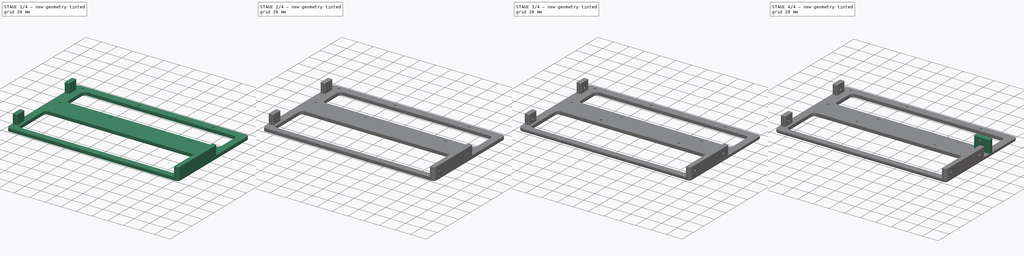
[diagram: build sequence overview — one tinted view per stage of 4, left to right]
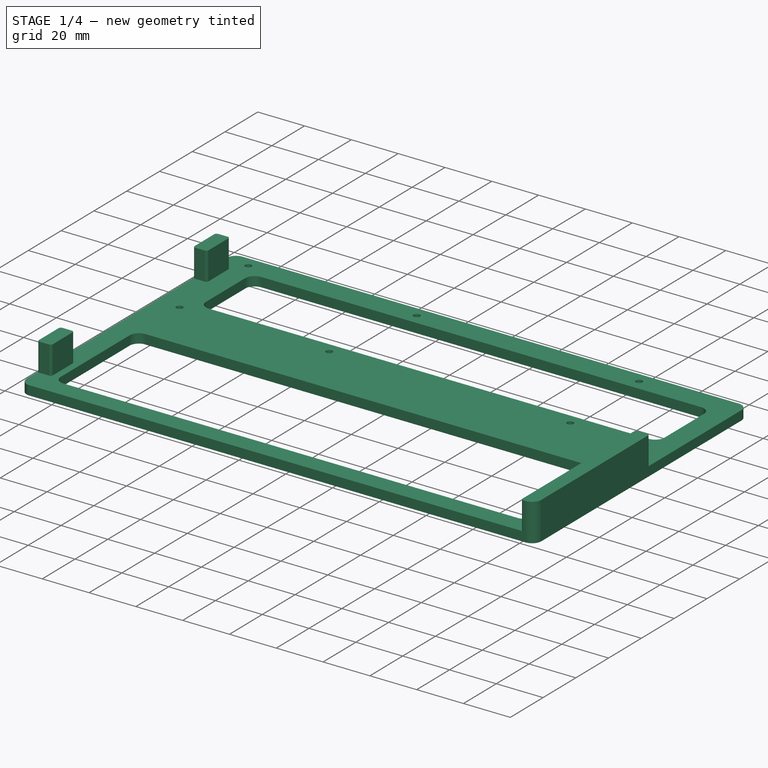
[diagram: stage 1 of 4 — iso view after this stage's code; geometry added in this stage tinted green]
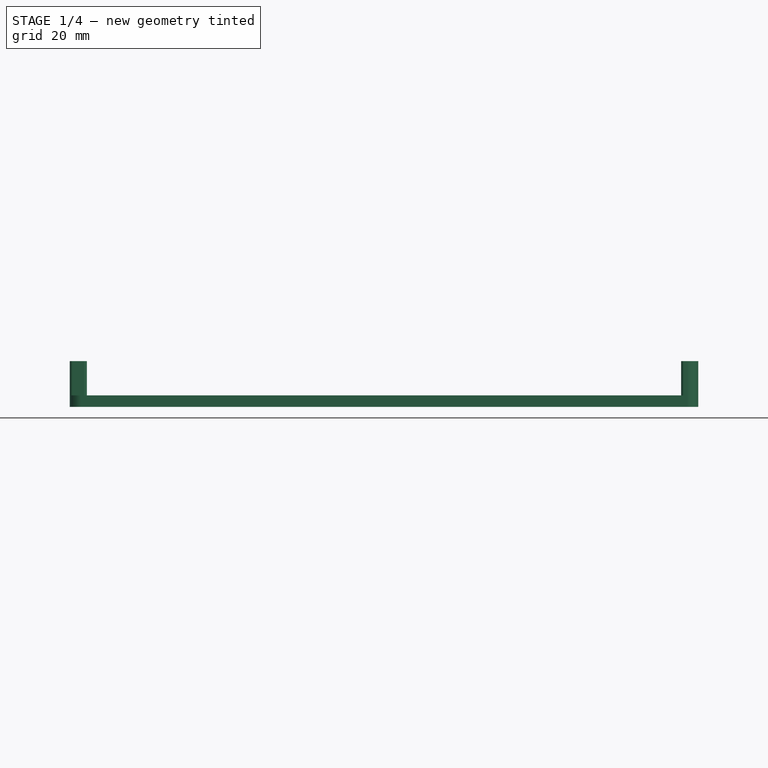
[diagram: stage 1 of 4 — front view after this stage's code; geometry added in this stage tinted green]
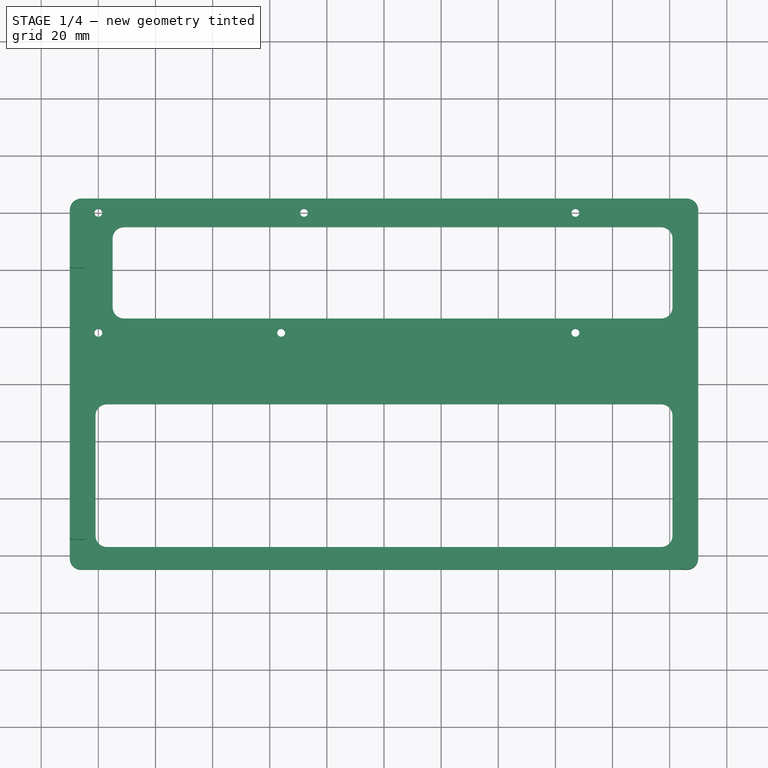
[diagram: stage 1 of 4 — top view after this stage's code; geometry added in this stage tinted green]
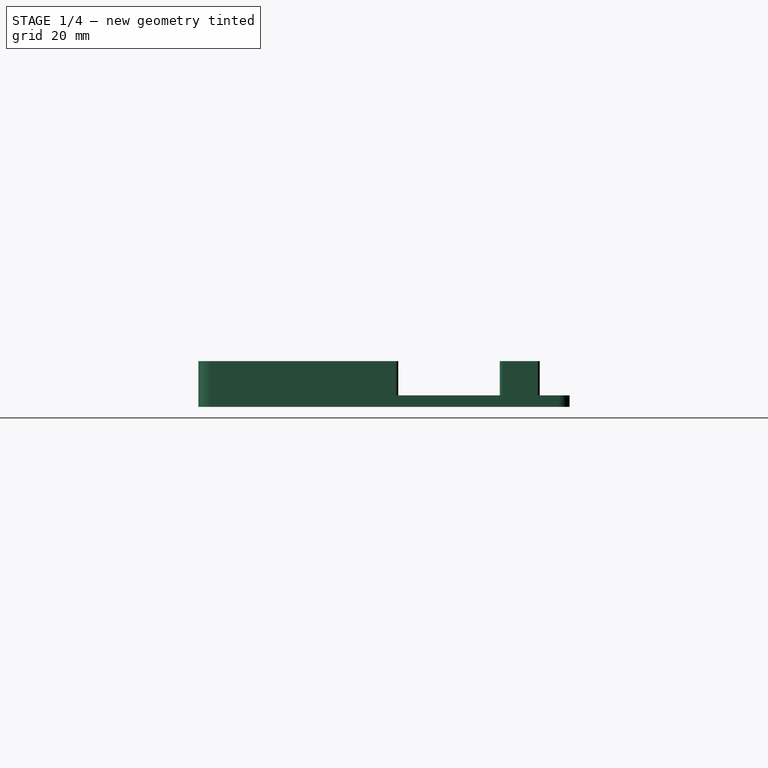
[diagram: stage 1 of 4 — right view after this stage's code; geometry added in this stage tinted green]
FCSTD DOCUMENT  (FreeCAD 0.21R33668 +7 (Git))
Label: baseplate
License: All rights reserved
LicenseURL: http://en.wikipedia.org/wiki/All_rights_reserved
objects: Sketcher::SketchObject×8, PartDesign::Pocket×5, PartDesign::Pad×3, Spreadsheet::Sheet×1, PartDesign::Fillet×1, PartDesign::Body×1
note: 27 computed .brp shape members not serialized (recipe doc carries the construction recipe); baked Part::Feature solids carry a one-line shape summary decoded from their .brp

FEATURE [Sketcher::SketchObject] Sketch
  FullyConstrained = true
  MapMode = 5
  Support = -> [XY_Plane]
  expr: Constraints[12] = Spreadsheet.plateCorner
  expr: Constraints[13] = Spreadsheet.plateCorner
  expr: Constraints[14] = Spreadsheet.plateCorner
  expr: Constraints[15] = Spreadsheet.plateCorner
  expr: Constraints[79] = Spreadsheet.gpuCutoutDist
  expr: Constraints[80] = Spreadsheet.gpuCutoutDist
  expr: Constraints[81] = Spreadsheet.plateCutoutCorner
  expr: Constraints[82] = Spreadsheet.gpuCutoutDist
  expr: Constraints[83] = Spreadsheet.gpuSide
  sketch-geometry (34):
    g0: LineSegment StartX=-106 StartY=65 StartZ=0 EndX=106 EndY=65 EndZ=0
    g1: LineSegment StartX=110 StartY=61 StartZ=0 EndX=110 EndY=-61 EndZ=0
    g2: LineSegment StartX=106 StartY=-65 StartZ=0 EndX=-106 EndY=-65 EndZ=0
    g3: LineSegment StartX=-110 StartY=-61 StartZ=0 EndX=-110 EndY=61 EndZ=0
    g4: ArcOfCircle CenterX=-106 CenterY=61 CenterZ=0 NormalX=0 NormalY=0 NormalZ=1 AngleXU=0 Radius=4 StartAngle=1.5708 EndAngle=3.14159
    g5: ArcOfCircle CenterX=106 CenterY=61 CenterZ=0 NormalX=0 NormalY=0 NormalZ=1 AngleXU=0 Radius=4 StartAngle=-9e-16 EndAngle=1.5708
    g6: ArcOfCircle CenterX=106 CenterY=-61 CenterZ=0 NormalX=0 NormalY=0 NormalZ=1 AngleXU=0 Radius=4 StartAngle=4.71239 EndAngle=6.28319
    g7: ArcOfCircle CenterX=-106 CenterY=-61 CenterZ=0 NormalX=0 NormalY=0 NormalZ=1 AngleXU=0 Radius=4 StartAngle=3.14159 EndAngle=4.71239
    g8: Circle CenterX=-100 CenterY=60 CenterZ=0 NormalX=0 NormalY=0 NormalZ=1 AngleXU=0 Radius=1.375
    g9: Circle CenterX=-28 CenterY=60 CenterZ=0 NormalX=0 NormalY=0 NormalZ=1 AngleXU=0 Radius=1.375
    g10: Circle CenterX=67 CenterY=60 CenterZ=0 NormalX=0 NormalY=0 NormalZ=1 AngleXU=0 Radius=1.375
    g11: Circle CenterX=67 CenterY=18 CenterZ=0 NormalX=0 NormalY=0 NormalZ=1 AngleXU=0 Radius=1.375
    g12: Circle CenterX=-36 CenterY=18 CenterZ=0 NormalX=0 NormalY=0 NormalZ=1 AngleXU=0 Radius=1.375
    g13: Circle CenterX=-100 CenterY=18 CenterZ=0 NormalX=0 NormalY=0 NormalZ=1 AngleXU=0 Radius=1.375
    g14: ArcOfCircle CenterX=-97 CenterY=-11 CenterZ=0 NormalX=0 NormalY=0 NormalZ=1 AngleXU=0 Radius=4 StartAngle=1.5708 EndAngle=3.14159
    g15: LineSegment StartX=-97 StartY=-7 StartZ=0 EndX=97 EndY=-7 EndZ=0
    g16: ArcOfCircle CenterX=97 CenterY=-11 CenterZ=0 NormalX=0 NormalY=0 NormalZ=1 AngleXU=0 Radius=4 StartAngle=3e-16 EndAngle=1.5708
    g17: LineSegment StartX=101 StartY=-11 StartZ=0 EndX=101 EndY=-53 EndZ=0
    g18: ArcOfCircle CenterX=97 CenterY=-53 CenterZ=0 NormalX=0 NormalY=0 NormalZ=1 AngleXU=0 Radius=4 StartAngle=4.71239 EndAngle=6.28319
    g19: LineSegment StartX=97 StartY=-57 StartZ=0 EndX=-97 EndY=-57 EndZ=0
    g20: ArcOfCircle CenterX=-97 CenterY=-53 CenterZ=0 NormalX=0 NormalY=0 NormalZ=1 AngleXU=0 Radius=4 StartAngle=3.14159 EndAngle=4.71239
    g21: LineSegment StartX=-101 StartY=-53 StartZ=0 EndX=-101 EndY=-11 EndZ=0
    g22: GeomPoint X=-101 Y=-7 Z=0
    g23: GeomPoint X=101 Y=-57 Z=0
    g24: ArcOfCircle CenterX=-91 CenterY=51 CenterZ=0 NormalX=0 NormalY=0 NormalZ=1 AngleXU=0 Radius=4 StartAngle=1.5708 EndAngle=3.14159
    g25: LineSegment StartX=-91 StartY=55 StartZ=0 EndX=97 EndY=55 EndZ=0
    g26: ArcOfCircle CenterX=97 CenterY=51 CenterZ=0 NormalX=0 NormalY=0 NormalZ=1 AngleXU=0 Radius=4 StartAngle=0 EndAngle=1.5708
    g27: LineSegment StartX=101 StartY=51 StartZ=0 EndX=101 EndY=27 EndZ=0
    g28: ArcOfCircle CenterX=97 CenterY=27 CenterZ=0 NormalX=0 NormalY=0 NormalZ=1 AngleXU=0 Radius=4 StartAngle=4.71239 EndAngle=6.28319
    g29: LineSegment StartX=97 StartY=23 StartZ=0 EndX=-91 EndY=23 EndZ=0
    g30: ArcOfCircle CenterX=-91 CenterY=27 CenterZ=0 NormalX=0 NormalY=0 NormalZ=1 AngleXU=0 Radius=4 StartAngle=3.14159 EndAngle=4.71239
    g31: LineSegment StartX=-95 StartY=27 StartZ=0 EndX=-95 EndY=51 EndZ=0
    g32: GeomPoint X=-95 Y=55 Z=0
    g33: GeomPoint X=101 Y=23 Z=0
  constraints (85):
    c: Horizontal(g0)
    c: Horizontal(g2)
    c: Vertical(g1)
    c: Vertical(g3)
    c: Tangent(g0,g4) = 1.5708
    c: Tangent(g3,g4) = 1.5708
    c: Tangent(g0,g5) = 1.5708
    c: Tangent(g1,g5) = 1.5708
    c: Tangent(g1,g6) = 1.5708
    c: Tangent(g2,g6) = 1.5708
    c: Tangent(g2,g7) = 1.5708
    c: Tangent(g3,g7) = 1.5708
    c: DistanceX(g3,g4) = 4
    c: DistanceX(g3,g7) = 4
    c: DistanceX(g5,g1) = 4
    c: DistanceX(g6,g1) = 4
    c: DistanceY(g2,g0) = 130
    c: DistanceX(g3,g1) = 220
    c: Symmetric(g4,g6,g-1)
    c: Horizontal(g12,g13)
    c: Horizontal(g12,g11)
    c: Horizontal(g9,g8)
    c: Vertical(g13,g8)
    c: Vertical(g10,g11)
    c: DistanceX(g8,g9) = 72
    c: DistanceX(g9,g10) = 95
    c: DistanceX(g13,g12) = 64
    c: DistanceY(g11,g10) = 42
    c: Horizontal(g10,g9)
    c: DistanceY(g10,g0) = 5
    c: Equal(g11,g10)
    c: Equal(g11,g9)
    c: Equal(g11,g12)
    c: Equal(g11,g13)
    c: Equal(g11,g8)
    c: Diameter(g11) = 2.75
    c: Tangent(g14,g15) = 1.5708
    c: Tangent(g15,g16) = 1.5708
    c: Tangent(g16,g17) = 1.5708
    c: Tangent(g17,g18) = 1.5708
    c: Tangent(g18,g19) = 1.5708
    c: Tangent(g19,g20) = 1.5708
    c: Tangent(g20,g21) = 1.5708
    c: Tangent(g21,g14) = 1.5708
    c: Horizontal(g15)
    c: Horizontal(g19)
    c: Vertical(g17)
    c: Vertical(g21)
    c: Equal(g14,g16)
    c: Equal(g16,g18)
    c: Equal(g18,g20)
    c: PointOnObject(g22,g15)
    c: PointOnObject(g22,g21)
    c: PointOnObject(g23,g17)
    c: PointOnObject(g23,g19)
    c: DistanceY(g16,g15) = 4
    c: DistanceY(g18,g15) = 50
    c: DistanceX(g3,g20) = 9
    c: DistanceX(g17,g1) = 9
    c: DistanceY(g2,g18) = 8
    c: Tangent(g24,g25) = 1.5708
    c: Tangent(g25,g26) = 1.5708
    c: Tangent(g26,g27) = 1.5708
    c: Tangent(g27,g28) = 1.5708
    c: Tangent(g28,g29) = 1.5708
    c: Tangent(g29,g30) = 1.5708
    c: Tangent(g30,g31) = 1.5708
    c: Tangent(g31,g24) = 1.5708
    c: Horizontal(g25)
    c: Horizontal(g29)
    c: Vertical(g27)
    c: Vertical(g31)
    c: Equal(g24,g26)
    c: Equal(g26,g28)
    c: Equal(g28,g30)
    c: PointOnObject(g32,g25)
    c: PointOnObject(g32,g31)
    c: PointOnObject(g33,g27)
    c: PointOnObject(g33,g29)
    c: DistanceX(g8,g24) = 5
    c: DistanceY(g24,g8) = 5
    c: DistanceY(g29,g30) = 4
    c: DistanceY(g13,g29) = 5
    c: DistanceX(g3,g8) = 10
    c: DistanceX(g26,g1) = 9
FEATURE [PartDesign::Pad] Pad
  Direction = (0,0,1)
  Length = 4
  Length2 = 10
  Profile = -> Sketch
  ReferenceAxis = -> Sketch [N_Axis]
  Type = 0
FEATURE [Sketcher::SketchObject] Sketch001
  ExternalGeometry = -> [Pad]
  FullyConstrained = true
  MapMode = 5
  Placement = pos=(0,0,4) rot=(0,0,1;0rad)
  Support = -> [Pad]
  expr: Constraints[38] = Spreadsheet.latteScrewWidth
  expr: Constraints[39] = Spreadsheet.latteCorner
  expr: Constraints[40] = Spreadsheet.latteScrewDepth
  expr: Constraints[43] = Spreadsheet.latteScrewDepth
  expr: Constraints[44] = Spreadsheet.latteScrewWidth
  expr: Constraints[45] = Spreadsheet.latteWidth
  expr: Constraints[69] = Spreadsheet.psuOuterWidth
  sketch-geometry (30):
    g0: ArcOfCircle CenterX=-109 CenterY=53.5 CenterZ=0 NormalX=0 NormalY=0 NormalZ=1 AngleXU=0 Radius=1 StartAngle=1.5708 EndAngle=3.14159
    g1: LineSegment StartX=-109 StartY=54.5 StartZ=0 EndX=-105 EndY=54.5 EndZ=0
    g2: ArcOfCircle CenterX=-105 CenterY=53.5 CenterZ=0 NormalX=0 NormalY=0 NormalZ=1 AngleXU=0 Radius=1 StartAngle=1.2e-15 EndAngle=1.5708
    g3: LineSegment StartX=-104 StartY=53.5 StartZ=0 EndX=-104 EndY=41.5 EndZ=0
    g4: ArcOfCircle CenterX=-105 CenterY=41.5 CenterZ=0 NormalX=0 NormalY=0 NormalZ=1 AngleXU=0 Radius=1 StartAngle=4.71239 EndAngle=6.28319
    g5: LineSegment StartX=-105 StartY=40.5 StartZ=0 EndX=-109 EndY=40.5 EndZ=0
    g6: ArcOfCircle CenterX=-109 CenterY=41.5 CenterZ=0 NormalX=0 NormalY=0 NormalZ=1 AngleXU=0 Radius=1 StartAngle=3.14159 EndAngle=4.71239
    g7: LineSegment StartX=-110 StartY=41.5 StartZ=0 EndX=-110 EndY=53.5 EndZ=0
    g8: GeomPoint X=-110 Y=54.5 Z=0
    g9: GeomPoint X=-104 Y=40.5 Z=0
    g10: ArcOfCircle CenterX=-109 CenterY=-41.5 CenterZ=0 NormalX=0 NormalY=0 NormalZ=1 AngleXU=0 Radius=1 StartAngle=1.5708 EndAngle=3.14159
    g11: LineSegment StartX=-109 StartY=-40.5 StartZ=0 EndX=-105 EndY=-40.5 EndZ=0
    g12: ArcOfCircle CenterX=-105 CenterY=-41.5 CenterZ=0 NormalX=0 NormalY=0 NormalZ=1 AngleXU=0 Radius=1 StartAngle=-5.3e-15 EndAngle=1.5708
    g13: LineSegment StartX=-104 StartY=-41.5 StartZ=0 EndX=-104 EndY=-53.5 EndZ=0
    g14: ArcOfCircle CenterX=-105 CenterY=-53.5 CenterZ=0 NormalX=0 NormalY=0 NormalZ=1 AngleXU=0 Radius=1 StartAngle=4.71239 EndAngle=6.28319
    g15: LineSegment StartX=-105 StartY=-54.5 StartZ=0 EndX=-109 EndY=-54.5 EndZ=0
    g16: ArcOfCircle CenterX=-109 CenterY=-53.5 CenterZ=0 NormalX=0 NormalY=0 NormalZ=1 AngleXU=0 Radius=1 StartAngle=3.14159 EndAngle=4.71239
    g17: LineSegment StartX=-110 StartY=-53.5 StartZ=0 EndX=-110 EndY=-41.5 EndZ=0
    g18: GeomPoint X=-110 Y=-40.5 Z=0
    g19: GeomPoint X=-104 Y=-54.5 Z=0
    g20: ArcOfCircle CenterX=105 CenterY=4 CenterZ=0 NormalX=0 NormalY=0 NormalZ=1 AngleXU=0 Radius=1 StartAngle=1.5708 EndAngle=3.14159
    g21: LineSegment StartX=105 StartY=5 StartZ=0 EndX=109 EndY=5 EndZ=0
    g22: ArcOfCircle CenterX=109 CenterY=4 CenterZ=0 NormalX=0 NormalY=0 NormalZ=1 AngleXU=0 Radius=1 StartAngle=1.38e-14 EndAngle=1.5708
    g23: LineSegment StartX=110 StartY=4 StartZ=0 EndX=110 EndY=-61 EndZ=0
    g24: ArcOfCircle CenterX=106 CenterY=-61 CenterZ=0 NormalX=0 NormalY=0 NormalZ=1 AngleXU=0 Radius=4 StartAngle=4.71239 EndAngle=6.28319
    g25: LineSegment StartX=106 StartY=-65 StartZ=0 EndX=105 EndY=-65 EndZ=0
    g26: ArcOfCircle CenterX=105 CenterY=-64 CenterZ=0 NormalX=0 NormalY=0 NormalZ=1 AngleXU=0 Radius=1 StartAngle=3.14159 EndAngle=4.71239
    g27: LineSegment StartX=104 StartY=-64 StartZ=0 EndX=104 EndY=4 EndZ=0
    g28: GeomPoint X=104 Y=5 Z=0
    g29: GeomPoint X=110 Y=-65 Z=0
  constraints (70):
    c: Tangent(g0,g1) = 1.5708
    c: Tangent(g1,g2) = 1.5708
    c: Tangent(g2,g3) = 1.5708
    c: Tangent(g3,g4) = 1.5708
    c: Tangent(g4,g5) = 1.5708
    c: Tangent(g5,g6) = 1.5708
    c: Tangent(g6,g7) = 1.5708
    c: Tangent(g7,g0) = 1.5708
    c: Horizontal(g1)
    c: Horizontal(g5)
    c: Vertical(g3)
    c: Vertical(g7)
    c: Equal(g0,g2)
    c: Equal(g2,g4)
    c: Equal(g4,g6)
    c: PointOnObject(g8,g1)
    c: PointOnObject(g8,g7)
    c: PointOnObject(g9,g3)
    c: PointOnObject(g9,g5)
    c: Tangent(g10,g11) = 1.5708
    c: Tangent(g11,g12) = 1.5708
    c: Tangent(g12,g13) = 1.5708
    c: Tangent(g13,g14) = 1.5708
    c: Tangent(g14,g15) = 1.5708
    c: Tangent(g15,g16) = 1.5708
    c: Tangent(g16,g17) = 1.5708
    c: Tangent(g17,g10) = 1.5708
    c: Horizontal(g11)
    c: Horizontal(g15)
    c: Vertical(g13)
    c: Vertical(g17)
    c: Equal(g10,g12)
    c: Equal(g12,g14)
    c: Equal(g14,g16)
    c: PointOnObject(g18,g11)
    c: PointOnObject(g18,g17)
    c: PointOnObject(g19,g13)
    c: PointOnObject(g19,g15)
    c: DistanceY(g4,g1) = 14
    c: DistanceX(g4,g3) = 1
    c: DistanceX(g0,g2) = 6
    c: Vertical(g0,g-3)
    c: Vertical(g10,g6)
    c: DistanceX(g10,g12) = 6
    c: DistanceY(g14,g11) = 14
    c: DistanceY(g16,g6) = 95
    c: Symmetric(g5,g10,g-1)
    c: Tangent(g20,g21) = 1.5708
    c: Tangent(g21,g22) = 1.5708
    c: Tangent(g22,g23) = 1.5708
    c: Tangent(g23,g24) = 1.5708
    c: Tangent(g24,g25) = 1.5708
    c: Tangent(g25,g26) = 1.5708
    c: Tangent(g26,g27) = 1.5708
    c: Tangent(g27,g20) = 1.5708
    c: Horizontal(g21)
    c: Horizontal(g25)
    c: Vertical(g23)
    c: Vertical(g27)
    c: Equal(g20,g22)
    c: PointOnObject(g28,g21)
    c: PointOnObject(g28,g27)
    c: PointOnObject(g29,g23)
    c: PointOnObject(g29,g25)
    c: DistanceX(g20,g20) = 1
    c: DistanceX(g20,g22) = 6
    c: Vertical(g23,g-6)
    c: Coincident(g24,g-6)
    c: DistanceX(g26,g26) = 1
    c: DistanceY(g24,g20) = 70
FEATURE [Spreadsheet::Sheet] Spreadsheet
  cells = A2='latteWidth; B2(latteWidth)=95; A3='latteHoleDia; B3(latteHoleDia)=2.8; A4='latteScrewDepth; B4(latteScrewDepth)=6; A5='latteScrewWidth; B5(latteScrewWidth)=14; A6='latteCorner; B6(latteCorner)=1; A7='psuWidth; B7(psuWidth)=52; A8='psuOuterWidth; B8(psuOuterWidth)=70; A9='psuScrewDepth; B9(psuScrewDepth)=4; A10='psuScrewWidth; B10(psuScrewWidth)=6; A11='psuScrewHeight; B11(psuScrewHeight)=6; A12='psuCorner; B12(psuCorner)=1; A13='gpuSide; B13(gpuSide)==B4 + 4; A14='gpuCutoutDist; B14(gpuCutoutDist)=5; A15='gpuScrewDia; B15(gpuScrewDia)=2.75; A16='plateCorner; B16(plateCorner)=4; A17='plateCutoutCorner; B17(plateCutoutCorner)=4
FEATURE [PartDesign::Pad] Pad001
  BaseFeature = -> Pad
  Direction = (0,0,1)
  Length = 12
  Length2 = 10
  Profile = -> Sketch001
  ReferenceAxis = -> Sketch001 [N_Axis]
  Type = 0
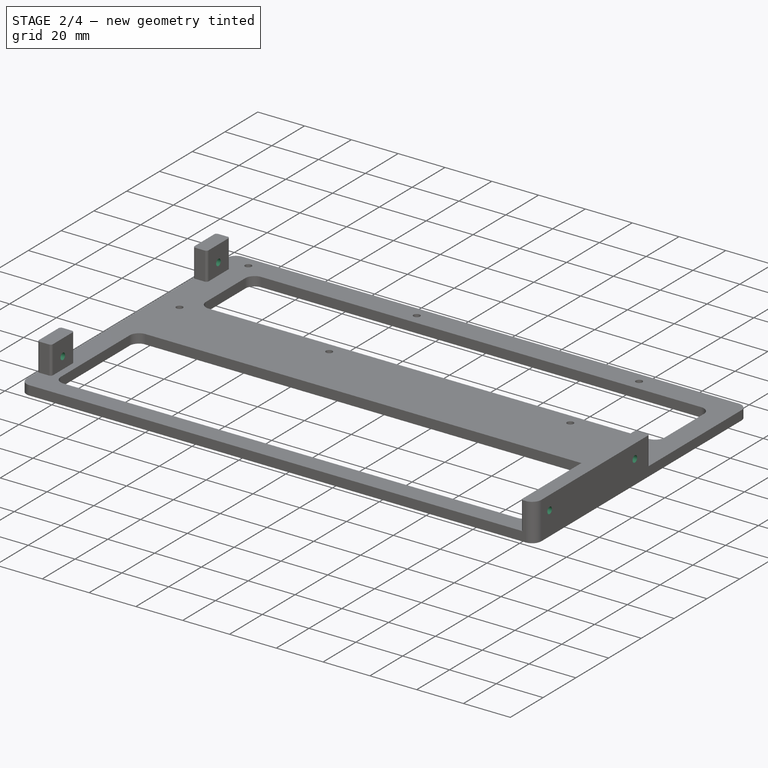
[diagram: stage 2 of 4 — iso view after this stage's code; geometry added in this stage tinted green]
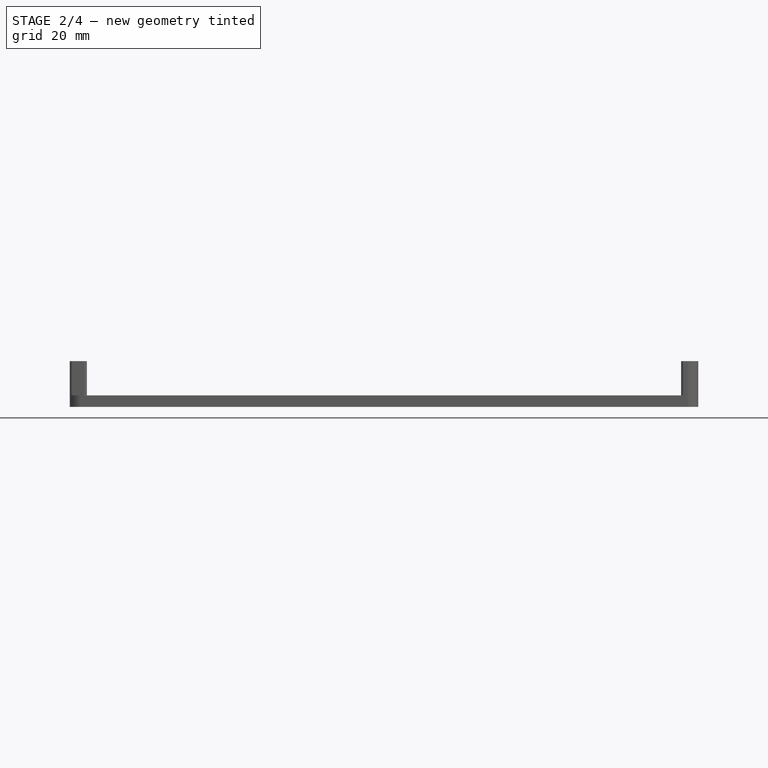
[diagram: stage 2 of 4 — front view after this stage's code; geometry added in this stage tinted green]
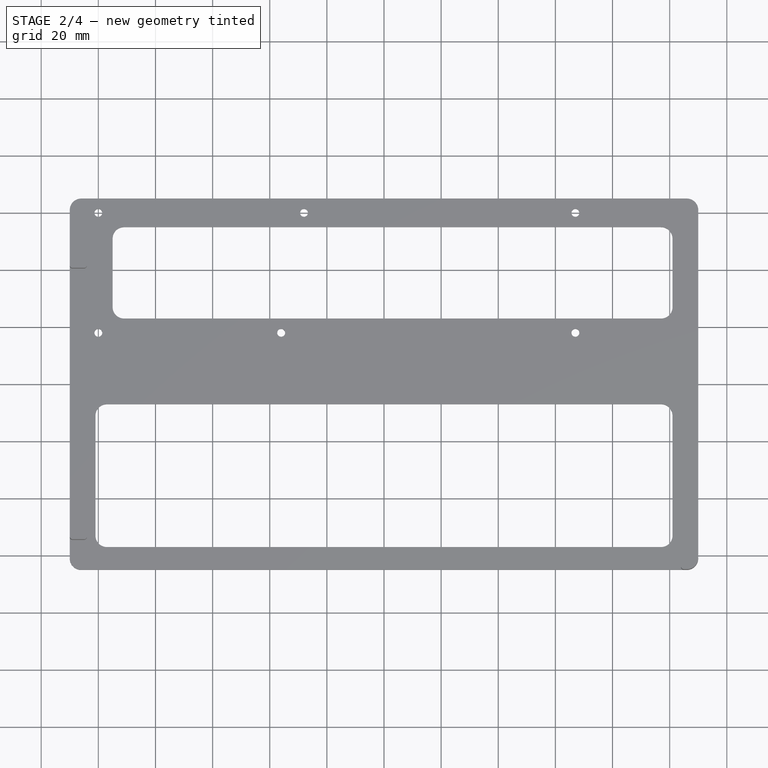
[diagram: stage 2 of 4 — top view after this stage's code; geometry added in this stage tinted green]
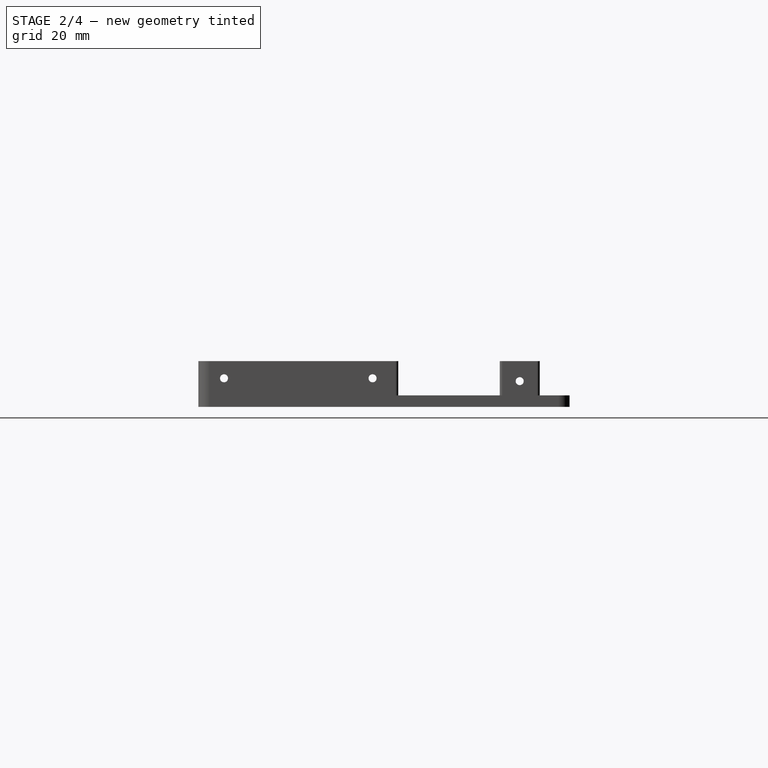
[diagram: stage 2 of 4 — right view after this stage's code; geometry added in this stage tinted green]
FEATURE [Sketcher::SketchObject] Sketch002
  ExternalGeometry = -> [Pad001]
  FullyConstrained = true
  MapMode = 5
  Placement = pos=(-110,0,0) rot=(0.57735,-0.57735,-0.57735;2.0944rad)
  Support = -> [Pad001]
  expr: Constraints[0] = Spreadsheet.latteHoleDia
  expr: Constraints[1] = Spreadsheet.latteHoleDia
  expr: Constraints[2] = Spreadsheet.latteWidth
  expr: Constraints[4] = Spreadsheet.latteScrewWidth / 2
  sketch-geometry (2):
    g0: Circle CenterX=-47.5 CenterY=9 CenterZ=0 NormalX=0 NormalY=0 NormalZ=1 AngleXU=0 Radius=1.4
    g1: Circle CenterX=47.5 CenterY=9 CenterZ=0 NormalX=0 NormalY=0 NormalZ=1 AngleXU=0 Radius=1.4
  constraints (6):
    c: Diameter(g1) = 2.8
    c: Diameter(g0) = 2.8
    c: DistanceX(g0,g1) = 95
    c: Horizontal(g0,g1)
    c: DistanceX(g0,g-4) = 7
    c: DistanceY(g-4,g0) = 5
FEATURE [PartDesign::Pocket] Pocket
  BaseFeature = -> Pad001
  Direction = (1,0,0)
  Length = 8
  Length2 = 5
  Profile = -> Sketch002
  ReferenceAxis = -> Sketch002 [N_Axis]
  Type = 0
FEATURE [Sketcher::SketchObject] Sketch003
  ExternalGeometry = -> [Pocket]
  FullyConstrained = true
  MapMode = 5
  Placement = pos=(110,0,0) rot=(0.57735,0.57735,0.57735;2.0944rad)
  Support = -> [Pocket]
  expr: Constraints[2] = 2.8
  expr: Constraints[4] = (Spreadsheet.psuOuterWidth - Spreadsheet.psuWidth) / 2
  expr: Constraints[5] = Spreadsheet.psuScrewHeight
  sketch-geometry (2):
    g0: Circle CenterX=-56 CenterY=10 CenterZ=0 NormalX=0 NormalY=0 NormalZ=1 AngleXU=0 Radius=1.4
    g1: Circle CenterX=-4 CenterY=10 CenterZ=0 NormalX=0 NormalY=0 NormalZ=1 AngleXU=0 Radius=1.4
  constraints (6):
    c: Horizontal(g0,g1)
    c: Equal(g0,g1)
    c: Diameter(g0) = 2.8
    c: DistanceX(g0,g1) = 52
    c: DistanceX(g1,g-5) = 9
    c: DistanceY(g-3,g0) = 6
FEATURE [PartDesign::Pocket] Pocket001
  BaseFeature = -> Pocket
  Direction = (-1,0,0)
  Length = 8
  Length2 = 5
  Profile = -> Sketch003
  ReferenceAxis = -> Sketch003 [N_Axis]
  Type = 0
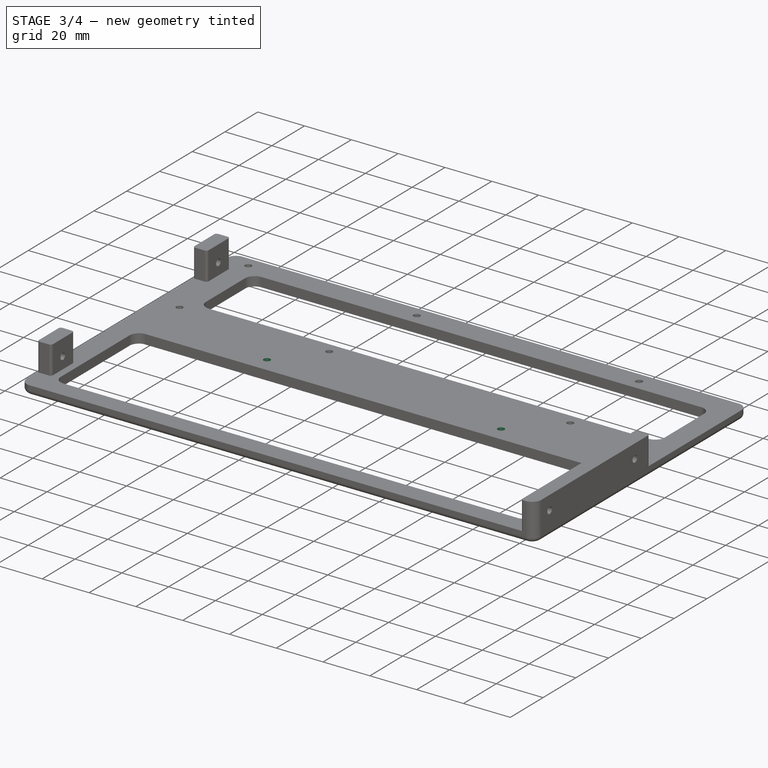
[diagram: stage 3 of 4 — iso view after this stage's code; geometry added in this stage tinted green]
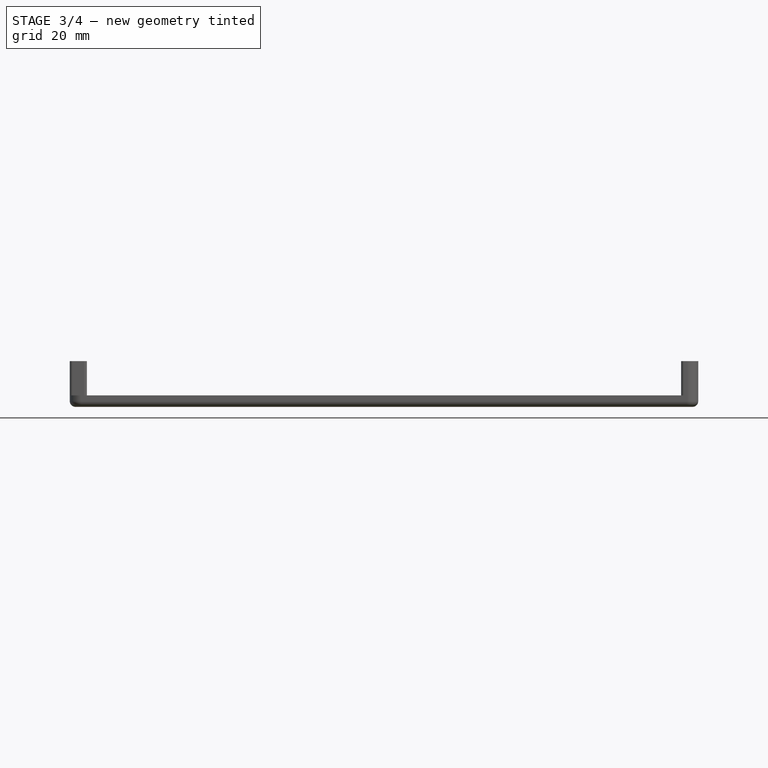
[diagram: stage 3 of 4 — front view after this stage's code; geometry added in this stage tinted green]
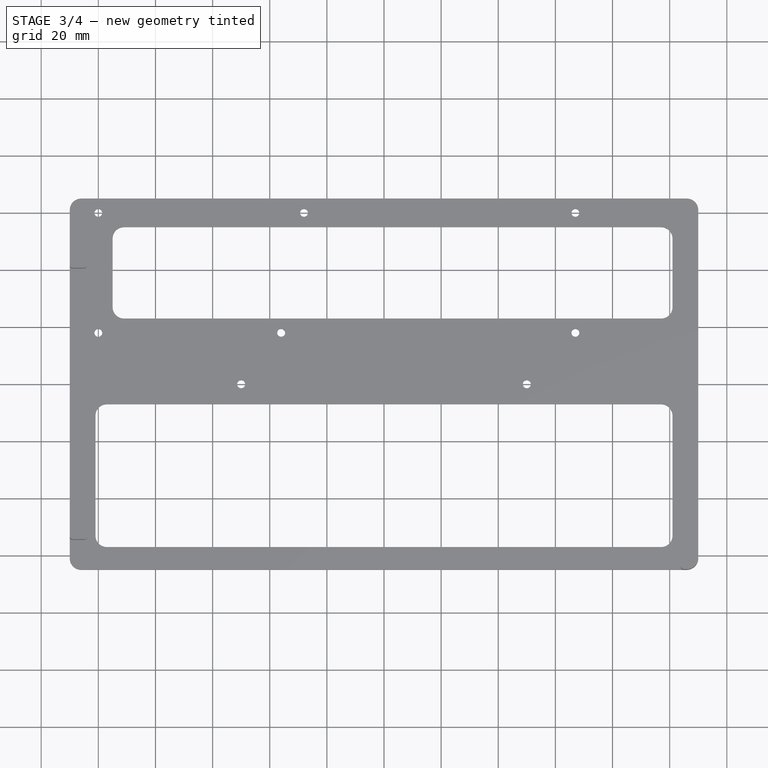
[diagram: stage 3 of 4 — top view after this stage's code; geometry added in this stage tinted green]
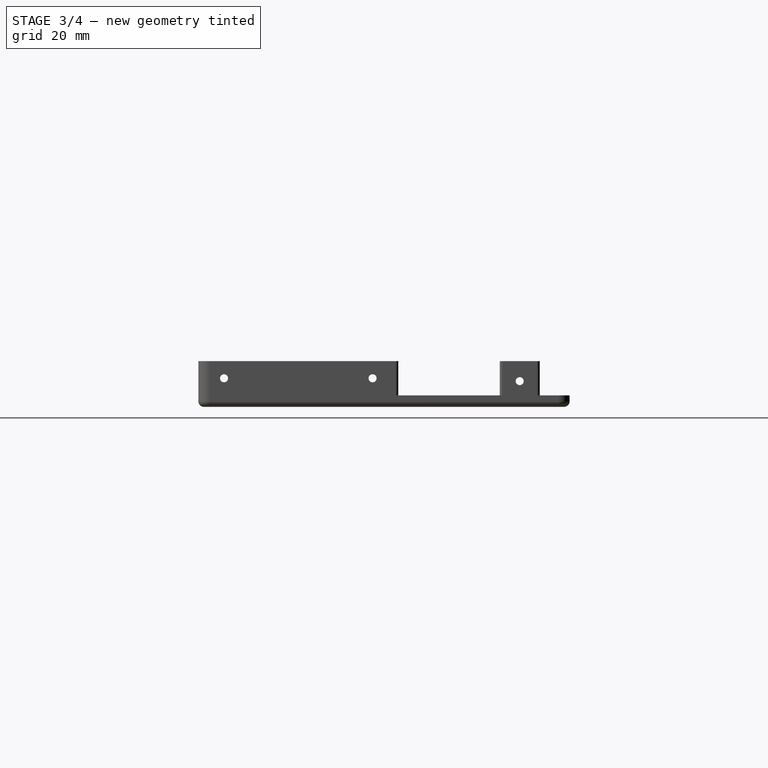
[diagram: stage 3 of 4 — right view after this stage's code; geometry added in this stage tinted green]
FEATURE [PartDesign::Fillet] Fillet
  Base = -> Pocket001 [Edge17]
  BaseFeature = -> Pocket001
  Radius = 2
  SupportTransform = false
  UseAllEdges = false
FEATURE [Sketcher::SketchObject] Sketch004
  ExternalGeometry = -> [Fillet]
  FullyConstrained = true
  MapMode = 5
  Placement = pos=(0,0,0) rot=(1,0,0;3.14159rad)
  Support = -> [Fillet]
  sketch-geometry (3):
    g0: Circle CenterX=-50 CenterY=-1.07e-14 CenterZ=0 NormalX=0 NormalY=0 NormalZ=1 AngleXU=0 Radius=3
    g1: Circle CenterX=50 CenterY=-1.07e-14 CenterZ=0 NormalX=0 NormalY=0 NormalZ=1 AngleXU=0 Radius=3
    g2: GeomPoint X=-106 Y=-1.07e-14 Z=0
  constraints (6):
    c: Equal(g0,g1)
    c: Diameter(g0) = 6
    c: Horizontal(g2,g0)
    c: Symmetric(g-4,g-3,g2)
    c: Symmetric(g0,g1,g-2)
    c: DistanceX(g0,g1) = 100
FEATURE [PartDesign::Pocket] Pocket002
  BaseFeature = -> Fillet
  Direction = (0,0,1)
  Length = 1.5
  Length2 = 5
  Profile = -> Sketch004
  ReferenceAxis = -> Sketch004 [N_Axis]
  Type = 0
FEATURE [Sketcher::SketchObject] Sketch005
  ExternalGeometry = -> [Pocket002]
  FullyConstrained = true
  MapMode = 5
  Placement = pos=(0,0,0) rot=(1,0,0;3.14159rad)
  Support = -> [Pocket002]
  sketch-geometry (2):
    g0: Circle CenterX=-50 CenterY=0 CenterZ=0 NormalX=0 NormalY=0 NormalZ=1 AngleXU=0 Radius=1.4
    g1: Circle CenterX=50 CenterY=0 CenterZ=0 NormalX=0 NormalY=0 NormalZ=1 AngleXU=0 Radius=1.4
  constraints (4):
    c: Coincident(g0,g-3)
    c: Coincident(g1,g-4)
    c: Equal(g1,g0)
    c: Diameter(g1) = 2.8
FEATURE [PartDesign::Pocket] Pocket003
  BaseFeature = -> Pocket002
  Direction = (0,0,1)
  Length = 5
  Length2 = 5
  Profile = -> Sketch005
  ReferenceAxis = -> Sketch005 [N_Axis]
  Type = 0
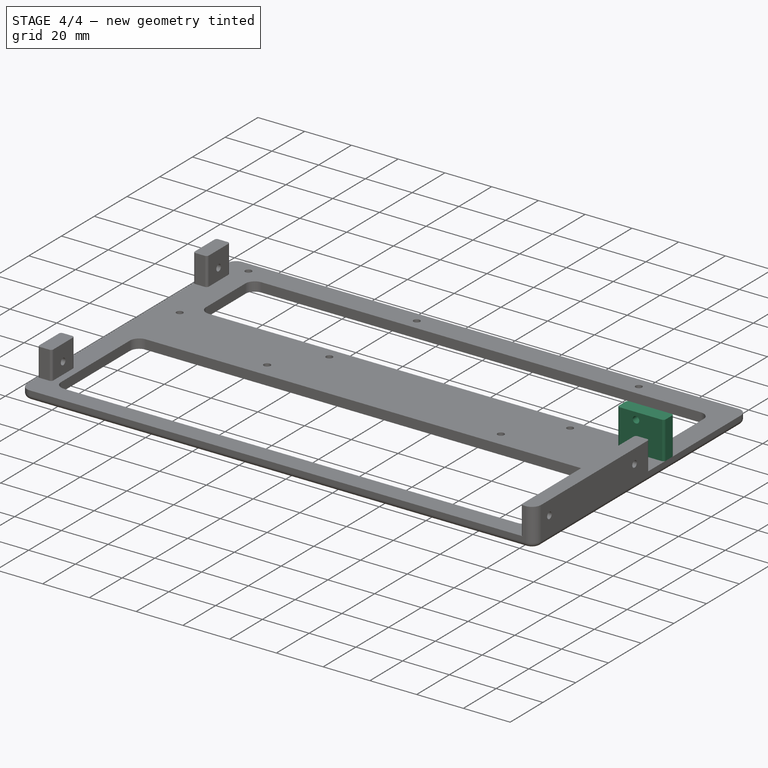
[diagram: stage 4 of 4 — iso view after this stage's code; geometry added in this stage tinted green]
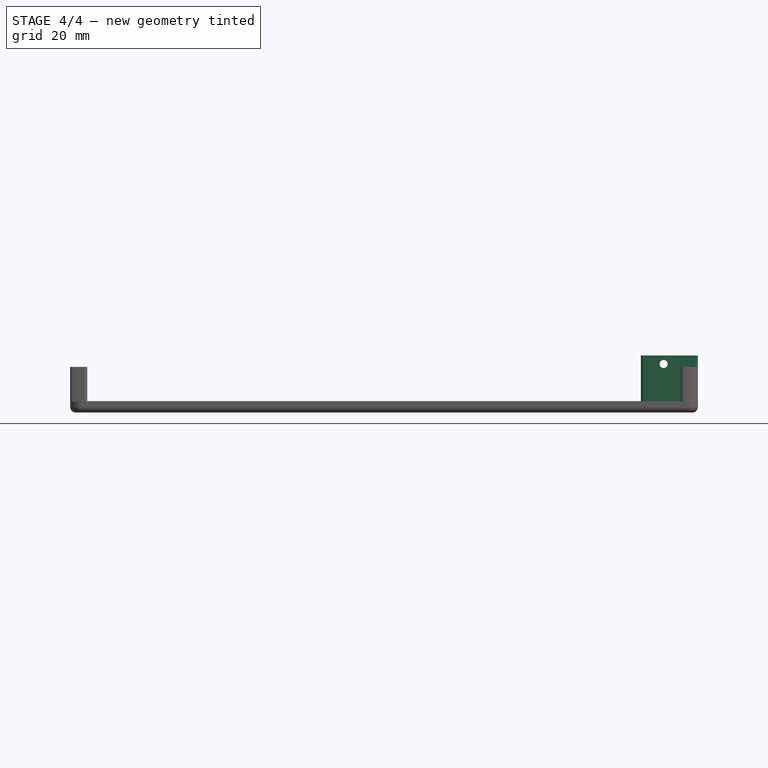
[diagram: stage 4 of 4 — front view after this stage's code; geometry added in this stage tinted green]
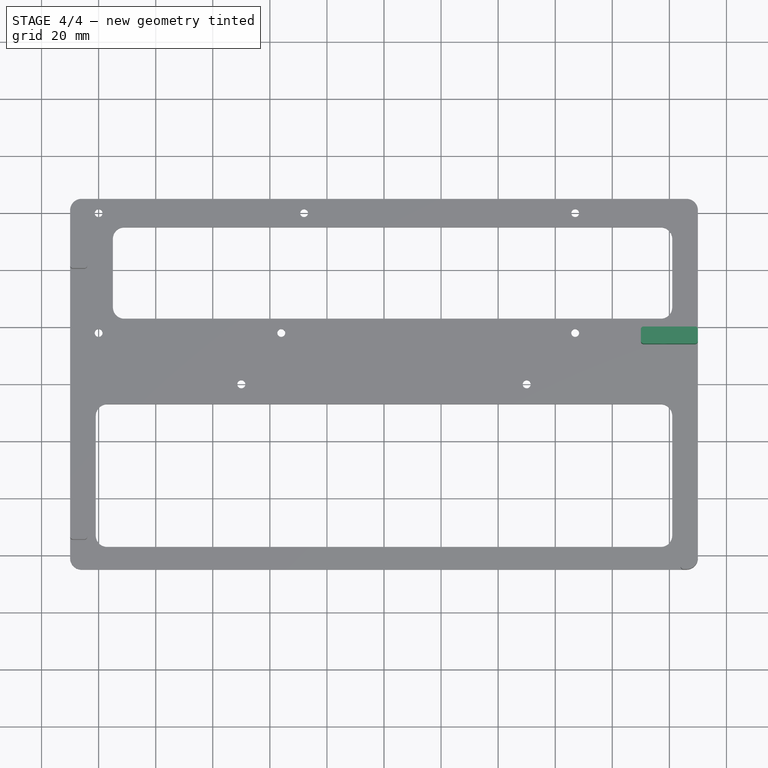
[diagram: stage 4 of 4 — top view after this stage's code; geometry added in this stage tinted green]
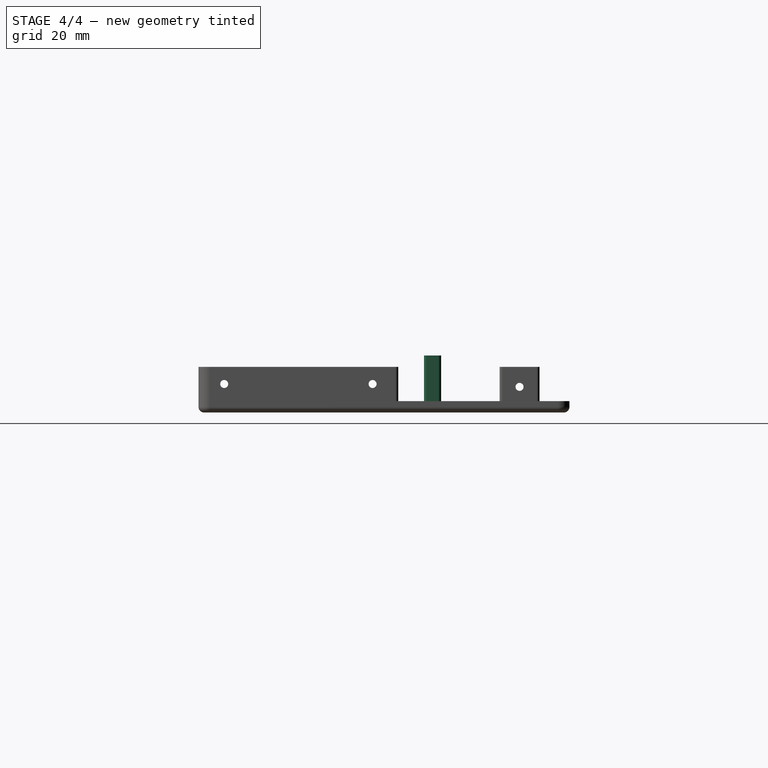
[diagram: stage 4 of 4 — right view after this stage's code; geometry added in this stage tinted green]
FEATURE [Sketcher::SketchObject] Sketch006
  ExternalGeometry = -> [Pocket003]
  FullyConstrained = true
  MapMode = 5
  Placement = pos=(0,0,4) rot=(0,0,1;0rad)
  Support = -> [Pocket003]
  sketch-geometry (10):
    g0: ArcOfCircle CenterX=109 CenterY=15 CenterZ=0 NormalX=0 NormalY=0 NormalZ=1 AngleXU=0 Radius=1 StartAngle=4.71239 EndAngle=6.28319
    g1: LineSegment StartX=109 StartY=14 StartZ=0 EndX=91 EndY=14 EndZ=0
    g2: ArcOfCircle CenterX=91 CenterY=15 CenterZ=0 NormalX=0 NormalY=0 NormalZ=1 AngleXU=0 Radius=1 StartAngle=3.14159 EndAngle=4.71239
    g3: LineSegment StartX=90 StartY=15 StartZ=0 EndX=90 EndY=19 EndZ=0
    g4: ArcOfCircle CenterX=91 CenterY=19 CenterZ=0 NormalX=0 NormalY=0 NormalZ=1 AngleXU=0 Radius=1 StartAngle=1.5708 EndAngle=3.14159
    g5: LineSegment StartX=91 StartY=20 StartZ=0 EndX=109 EndY=20 EndZ=0
    g6: ArcOfCircle CenterX=109 CenterY=19 CenterZ=0 NormalX=0 NormalY=0 NormalZ=1 AngleXU=0 Radius=1 StartAngle=2.22e-14 EndAngle=1.5708
    g7: LineSegment StartX=110 StartY=19 StartZ=0 EndX=110 EndY=15 EndZ=0
    g8: GeomPoint X=110 Y=14 Z=0
    g9: GeomPoint X=90 Y=20 Z=0
  constraints (24):
    c: Tangent(g0,g1) = 1.5708
    c: Tangent(g1,g2) = 1.5708
    c: Tangent(g2,g3) = 1.5708
    c: Tangent(g3,g4) = 1.5708
    c: Tangent(g4,g5) = 1.5708
    c: Tangent(g5,g6) = 1.5708
    c: Tangent(g6,g7) = 1.5708
    c: Tangent(g7,g0) = 1.5708
    c: Horizontal(g1)
    c: Horizontal(g5)
    c: Vertical(g3)
    c: Vertical(g7)
    c: Equal(g0,g2)
    c: Equal(g2,g4)
    c: Equal(g4,g6)
    c: PointOnObject(g8,g1)
    c: PointOnObject(g8,g7)
    c: PointOnObject(g9,g3)
    c: PointOnObject(g9,g5)
    c: DistanceX(g2,g2) = 1
    c: Vertical(g0,g-3)
    c: DistanceY(g0,g5) = 6
    c: DistanceX(g2,g0) = 20
    c: DistanceY(g4,g-4) = -2
FEATURE [PartDesign::Pad] Pad002
  BaseFeature = -> Pocket003
  Direction = (0,0,1)
  Length = 16
  Length2 = 10
  Profile = -> Sketch006
  ReferenceAxis = -> Sketch006 [N_Axis]
  Type = 0
FEATURE [Sketcher::SketchObject] Sketch007
  ExternalGeometry = -> [Pad002]
  FullyConstrained = true
  MapMode = 5
  Placement = pos=(0,20,0) rot=(0,0.707107,0.707107;3.14159rad)
  Support = -> [Pad002]
  sketch-geometry (2):
    g0: Circle CenterX=-98 CenterY=17 CenterZ=0 NormalX=0 NormalY=0 NormalZ=1 AngleXU=0 Radius=1.4
    g1: GeomPoint X=-67 Y=4 Z=0
  constraints (4):
    c: Diameter(g0) = 2.8
    c: DistanceY(g-3,g0) = 13
    c: Symmetric(g-5,g-5,g1)
    c: DistanceX(g0,g1) = 31
FEATURE [PartDesign::Pocket] Pocket004
  BaseFeature = -> Pad002
  Direction = (0,-1,2e-16)
  Length = 8
  Length2 = 5
  Profile = -> Sketch007
  ReferenceAxis = -> Sketch007 [N_Axis]
  Type = 0
FEATURE [PartDesign::Body] Body
  Group = -> [Sketch,Pad,Sketch001,Pad001,Sketch002,Pocket,Sketch003,Pocket001,Fillet,Sketch004,Pocket002,Sketch005,Pocket003,Sketch006,Pad002,Sketch007,Pocket004]
  Origin = -> Origin
  Tip = -> Pocket004
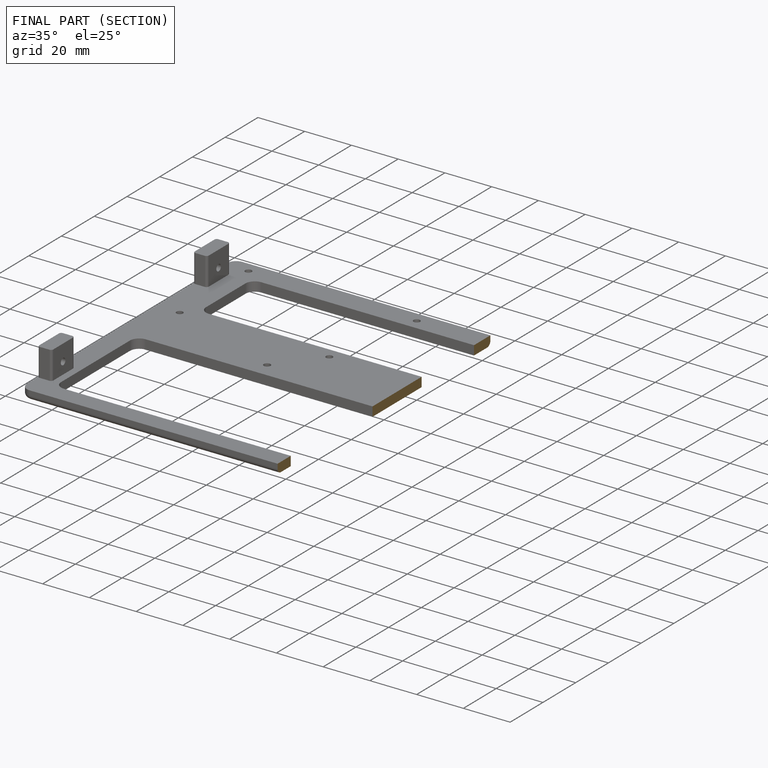
[diagram: finished part — half-section view (interior)]
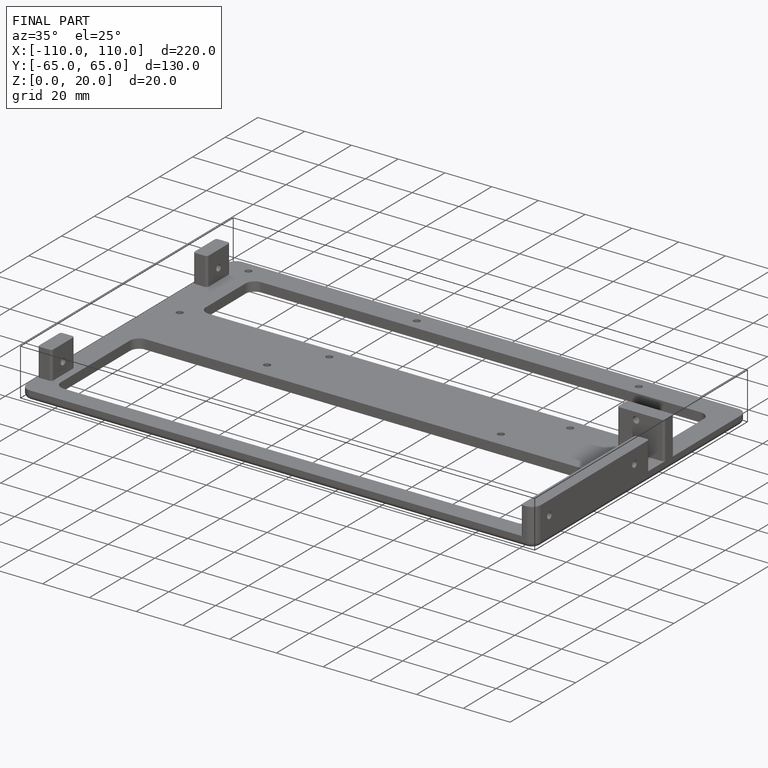
[diagram: finished part — iso view with bounding-box wireframe]
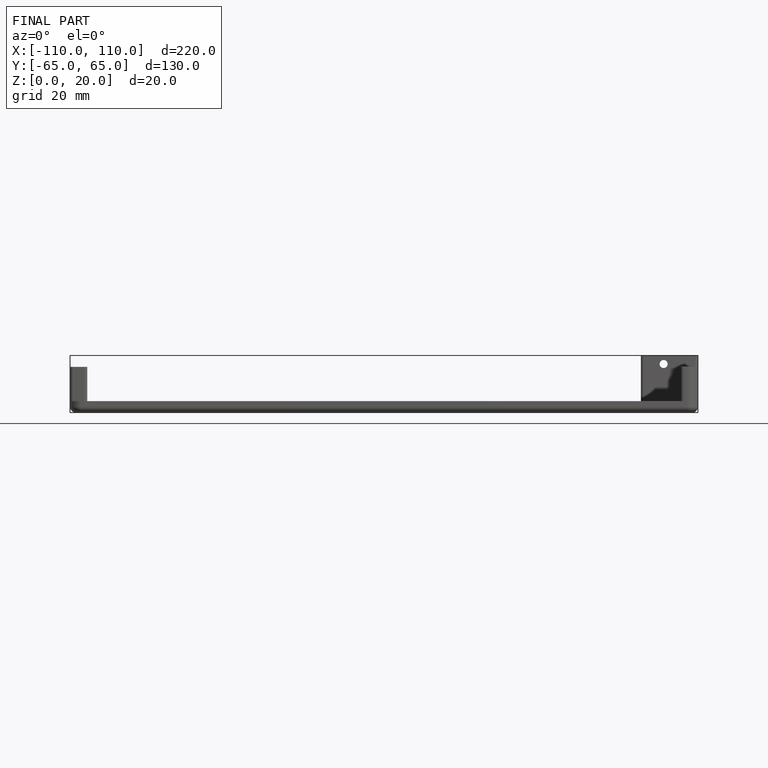
[diagram: finished part — front view with bounding-box wireframe]
